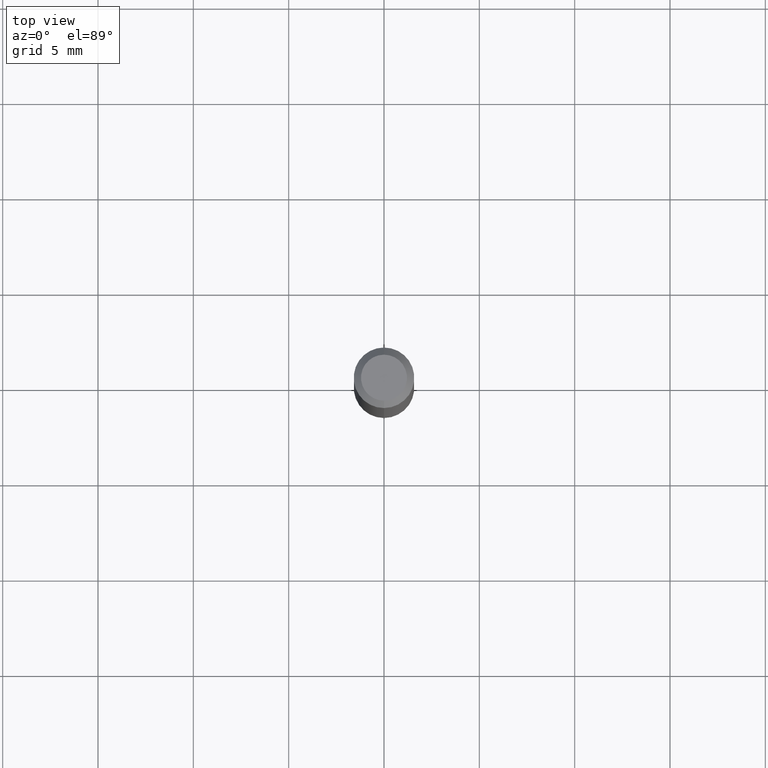
[diagram: clean part render]
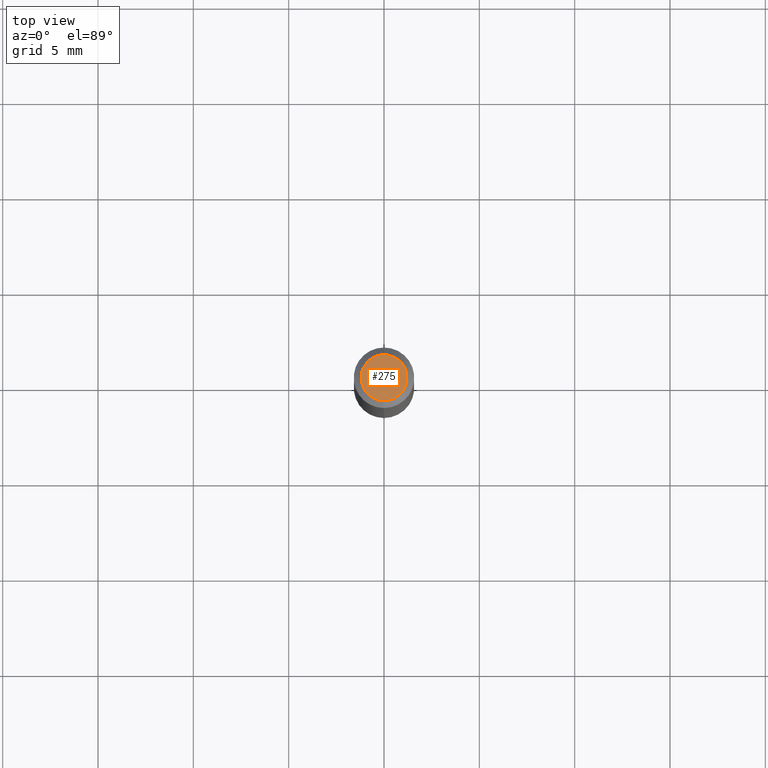
[diagram: same view with one face highlighted and labeled with its STEP entity id]
A machine part, top view. The second image highlights one B-rep face of the part: STEP entity #275.
In plain terms, the highlighted planar face has unit normal (0, -0, -1).
Its self-contained STEP definition (entity closure, byte-faithful):
#14 = DIRECTION ( 'NONE',  ( -6.982962677686266711E-15, -1.000000000000000000, 3.491447566903458265E-15 ) ) ;
#57 = CARTESIAN_POINT ( 'NONE',  ( 3.316907271900976096E-16, 0.04749999999999999362, -1.985946785376798961E-16 ) ) ;
#61 = DIRECTION ( 'NONE',  ( 6.982962677686265922E-15, 1.000000000000000000, -3.491447566903457082E-15 ) ) ;
#67 = EDGE_CURVE ( 'NONE', #252, #176, #496, .T. ) ;
#77 = DIRECTION ( 'NONE',  ( -2.445492389004576288E-29, 3.491447566903457476E-15, 1.000000000000000000 ) ) ;
#91 = EDGE_CURVE ( 'NONE', #176, #252, #489, .T. ) ;
#119 = CARTESIAN_POINT ( 'NONE',  ( 1.601842468316731120E-45, -2.286962336792868039E-31, -6.550183821953140246E-17 ) ) ;
#132 = CARTESIAN_POINT ( 'NONE',  ( 1.601842468316731120E-45, -2.286962336792868039E-31, -6.550183821953140246E-17 ) ) ;
#140 = PLANE ( 'NONE',  #141 ) ;
#141 = AXIS2_PLACEMENT_3D ( 'NONE', #57, #300, #61 ) ;
#161 = ORIENTED_EDGE ( 'NONE', *, *, #91, .T. ) ;
#176 = VERTEX_POINT ( 'NONE', #213 ) ;
#213 = CARTESIAN_POINT ( 'NONE',  ( -3.773273898774340269E-16, -0.04749999999999999362, 1.003419212083828355E-16 ) ) ;
#215 = AXIS2_PLACEMENT_3D ( 'NONE', #132, #77, #243 ) ;
#241 = EDGE_LOOP ( 'NONE', ( #318, #161 ) ) ;
#243 = DIRECTION ( 'NONE',  ( -6.982962677686266711E-15, -1.000000000000000000, 3.491447566903458265E-15 ) ) ;
#252 = VERTEX_POINT ( 'NONE', #406 ) ;
#275 = ADVANCED_FACE ( 'NONE', ( #499 ), #140, .F. ) ;
#300 = DIRECTION ( 'NONE',  ( 2.445492389004576007E-29, -3.491447566903457082E-15, -1.000000000000000000 ) ) ;
#318 = ORIENTED_EDGE ( 'NONE', *, *, #67, .T. ) ;
#395 = DIRECTION ( 'NONE',  ( -2.445492389004576288E-29, 3.491447566903457476E-15, 1.000000000000000000 ) ) ;
#406 = CARTESIAN_POINT ( 'NONE',  ( 3.840629472727447874E-16, 0.04749999999999999362, -2.313455976474456528E-16 ) ) ;
#480 = AXIS2_PLACEMENT_3D ( 'NONE', #119, #395, #14 ) ;
#489 = CIRCLE ( 'NONE', #215, 0.04749999999999999362 ) ;
#496 = CIRCLE ( 'NONE', #480, 0.04749999999999999362 ) ;
#499 = FACE_OUTER_BOUND ( 'NONE', #241, .T. ) ;